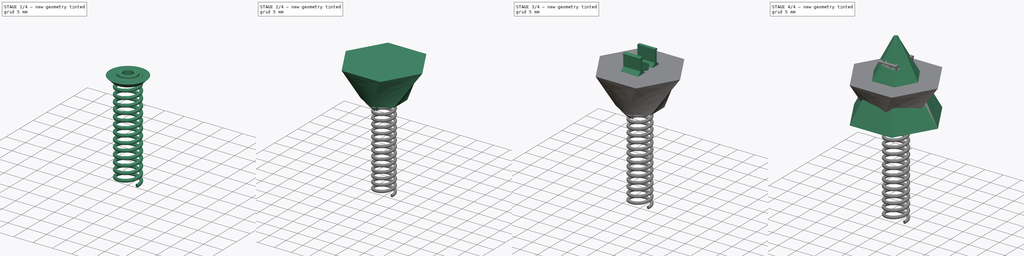
[diagram: build sequence overview — one tinted view per stage of 4, left to right]
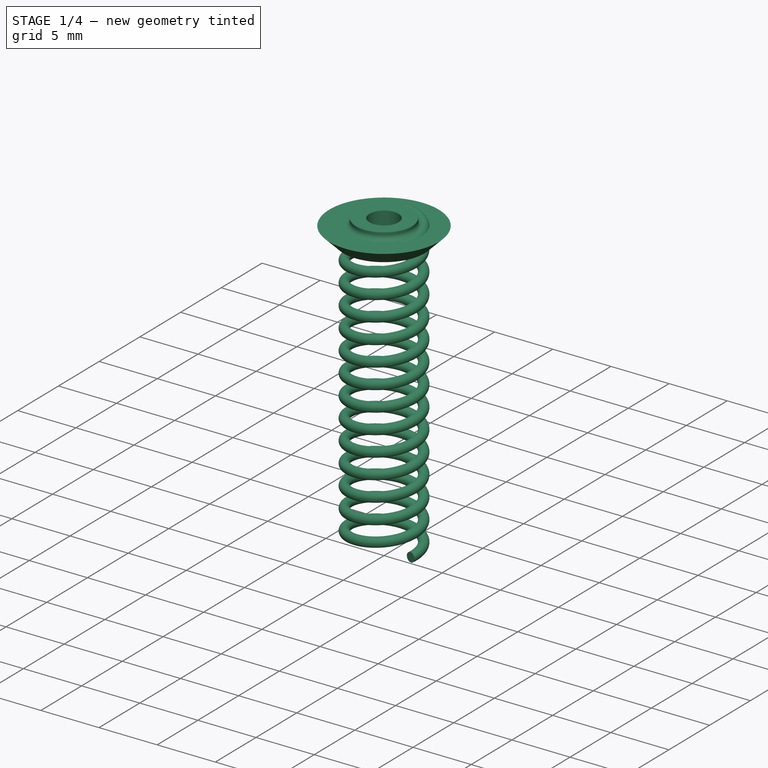
[diagram: stage 1 of 4 — iso view after this stage's code; geometry added in this stage tinted green]
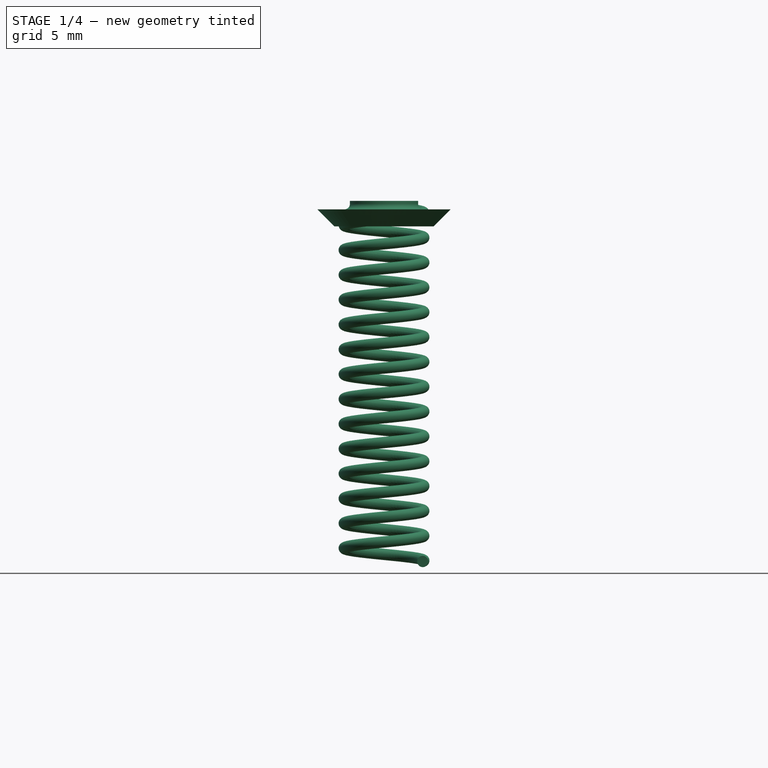
[diagram: stage 1 of 4 — front view after this stage's code; geometry added in this stage tinted green]
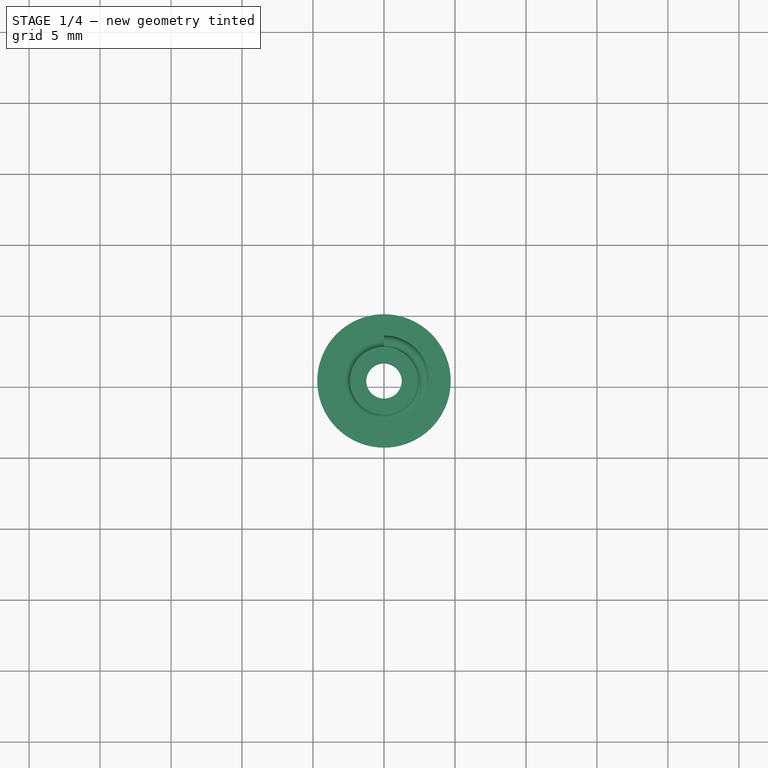
[diagram: stage 1 of 4 — top view after this stage's code; geometry added in this stage tinted green]
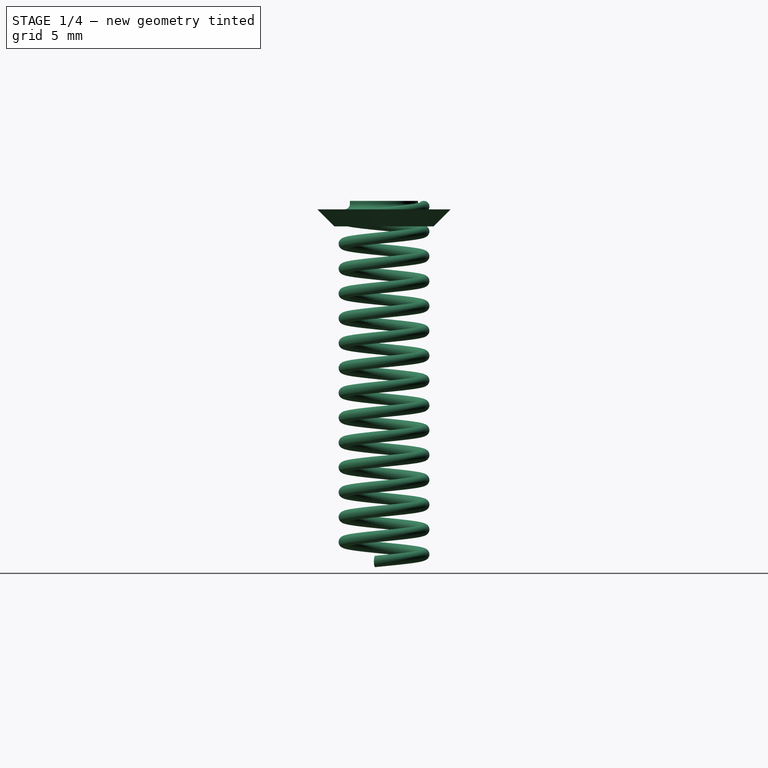
[diagram: stage 1 of 4 — right view after this stage's code; geometry added in this stage tinted green]
FCSTD DOCUMENT  (FreeCAD 0.19R24276 (Git))
Label: Phoebe_Tail
License: All rights reserved
LicenseURL: http://en.wikipedia.org/wiki/All_rights_reserved
objects: Sketcher::SketchObject×13, PartDesign::Plane×4, PartDesign::Pocket×4, PartDesign::Body×4, PartDesign::AdditiveLoft×2, Spreadsheet::Sheet×1, PartDesign::Revolution×1, PartDesign::Pad×1, PartDesign::AdditiveHelix×1, App::Part×1
note: 39 computed .brp shape members not serialized (recipe doc carries the construction recipe); baked Part::Feature solids carry a one-line shape summary decoded from their .brp

FEATURE [Sketcher::SketchObject] Sketch006  label="Sketch_TailBase002"
  FullyConstrained = true
  MapMode = 5
  Placement = pos=(0,0,0) rot=(1,0,0;1.5708rad)
  Support = -> [XZ_Plane002]
  expr: Constraints[24] = Spreadsheet.spring_wire_diam / 4
  expr: Constraints[23] = <<params>>.base_plate_outer_diam / 2
  expr: Constraints[11] = <<params>>.m2_hole_clear_diam / 2
  expr: Constraints[12] = <<params>>.base_plate_inner_diam / 2
  expr: Constraints[13] = Spreadsheet.spring_wire_diam
  expr: Constraints[14] = <<params>>.base_plate_thick
  sketch-geometry (9):
    g0: LineSegment StartX=1.25 StartY=0 StartZ=0 EndX=2.4 EndY=0 EndZ=0
    g1: LineSegment StartX=1.25 StartY=0 StartZ=0 EndX=1.25 EndY=-1.8 EndZ=0
    g2: LineSegment StartX=1.25 StartY=-1.8 StartZ=0 EndX=3.5 EndY=-1.8 EndZ=0
    g3: LineSegment StartX=4.7 StartY=-0.6 StartZ=0 EndX=2.8 EndY=-0.6 EndZ=0
    g4: LineSegment StartX=2.4 StartY=0 StartZ=0 EndX=2.4 EndY=-0.2 EndZ=0
    g5: ArcOfCircle CenterX=2.8 CenterY=-0.2 CenterZ=0 NormalX=0 NormalY=0 NormalZ=1 AngleXU=0 Radius=0.4 StartAngle=3.14159 EndAngle=4.71239
    g6: LineSegment StartX=3.5 StartY=-1.8 StartZ=0 EndX=4.7 EndY=-0.6 EndZ=0
    g7: LineSegment StartX=4.7 StartY=-0.6 StartZ=0 EndX=4.7 EndY=-1.8 EndZ=0
    g8: LineSegment StartX=3.5 StartY=-1.8 StartZ=0 EndX=4.7 EndY=-1.8 EndZ=0
  constraints (25):
    c: PointOnObject(g0,g-1)
    c: PointOnObject(g0,g-1)
    c: Coincident(g1,g0)
    c: Vertical(g1)
    c: Coincident(g2,g1)
    c: Horizontal(g2)
    c: Horizontal(g3)
    c: Coincident(g4,g0)
    c: Vertical(g4)
    c: Tangent(g3,g5) = 1.5708
    c: Tangent(g4,g5) = -1.5708
    c: DistanceX(g-1,g0) = 1.25
    c: DistanceX(g-1,g0) = 2.4
    c: Diameter(g5) = 0.8
    c: DistanceY(g1,g3) = 1.2
    c: Coincident(g6,g2)
    c: Vertical(g7)
    c: Coincident(g8,g2)
    c: Coincident(g8,g7)
    c: Horizontal(g8)
    c: Angle(g8,g6) = 0.785398
    c: Coincident(g6,g3)
    c: Coincident(g7,g3)
    c: DistanceX(g-1,g3) = 4.7
    c: DistanceY(g4,g0) = 0.2
FEATURE [PartDesign::Revolution] Revolution
  Angle = 360
  Axis = (0,-2e-16,1)
  Base = (0,0,0)
  Placement = pos=(0,0,0) rot=(1,0,0;1.5708rad)
  Profile = -> Sketch006
  ReferenceAxis = -> Sketch006 [V_Axis]
  Reversed = true
FEATURE [PartDesign::Body] Body001  label="Tail_AttachPlate"
  Group = -> [Sketch006,Revolution,Sketch021,Pocket006]
  Origin = -> Origin002
  Tip = -> Pocket006
FEATURE [Sketcher::SketchObject] Sketch022
  FullyConstrained = true
  MapMode = 5
  Placement = pos=(0,0,0) rot=(0.57735,0.57735,0.57735;2.0944rad)
  Support = -> [YZ_Plane008]
  expr: Constraints[2] = <<params>>.base_plate_inner_diam / 2 + <<params>>.spring_wire_diam / 2
  expr: Constraints[1] = Spreadsheet.spring_wire_diam / 2
  expr: Constraints[0] = Spreadsheet.spring_wire_diam
  sketch-geometry (1):
    g0: Circle CenterX=2.8 CenterY=-0.4 CenterZ=0 NormalX=0 NormalY=0 NormalZ=1 AngleXU=0 Radius=0.4
  constraints (3):
    c: Diameter(g0) = 0.8
    c: DistanceY(g0,g-1) = 0.4
    c: DistanceX(g-1,g0) = 2.8
FEATURE [PartDesign::AdditiveHelix] AdditiveHelix
  Angle = 0
  Axis = (-2e-16,3e-16,1)
  Base = (0,0,0)
  HasBeenEdited = true
  Height = 25
  LeftHanded = false
  Mode = 0
  Outside = false
  Pitch = 1.75
  Placement = pos=(0,0,0) rot=(0.57735,0.57735,0.57735;2.0944rad)
  Profile = -> Sketch022
  ReferenceAxis = -> Sketch022 [V_Axis]
  Reversed = true
  Turns = 3
FEATURE [PartDesign::Body] Body006  label="Spring"
  Group = -> [Sketch022,AdditiveHelix]
  Origin = -> Origin008
  Tip = -> AdditiveHelix
FEATURE [App::Part] Part  label="Tail_Part"
  Group = -> [Body,Body001,Body002,Body006]
  Origin = -> Origin
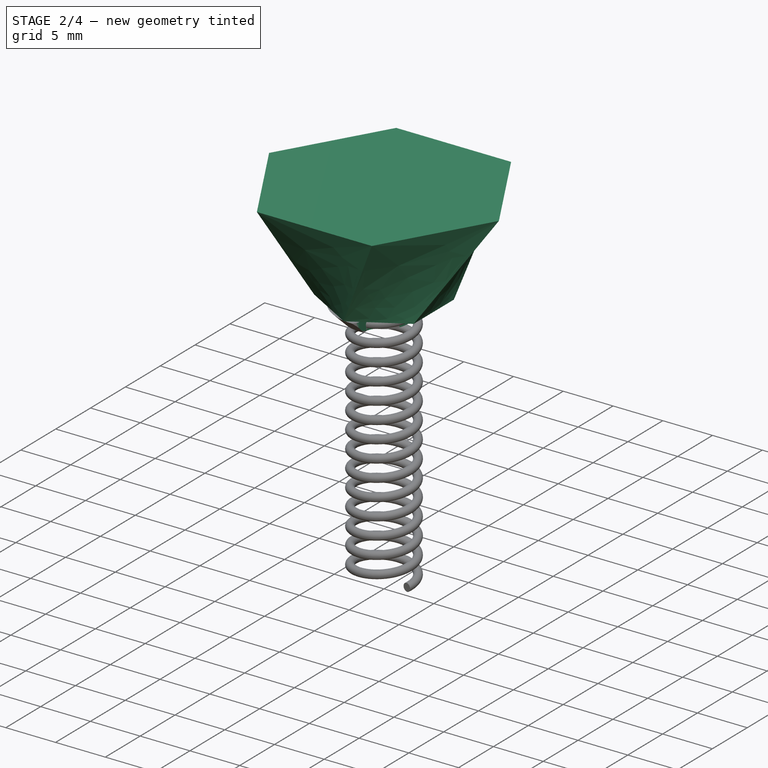
[diagram: stage 2 of 4 — iso view after this stage's code; geometry added in this stage tinted green]
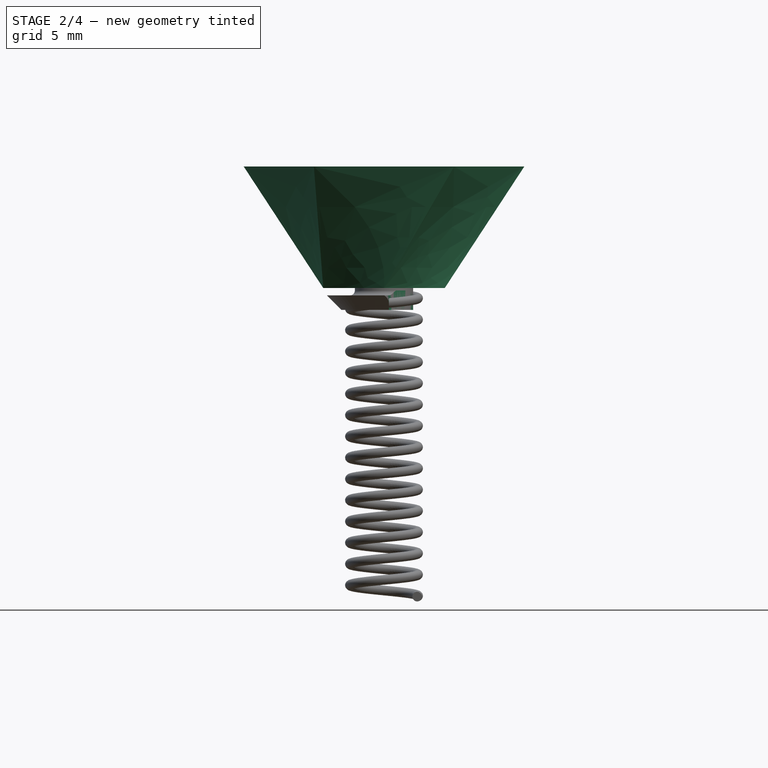
[diagram: stage 2 of 4 — front view after this stage's code; geometry added in this stage tinted green]
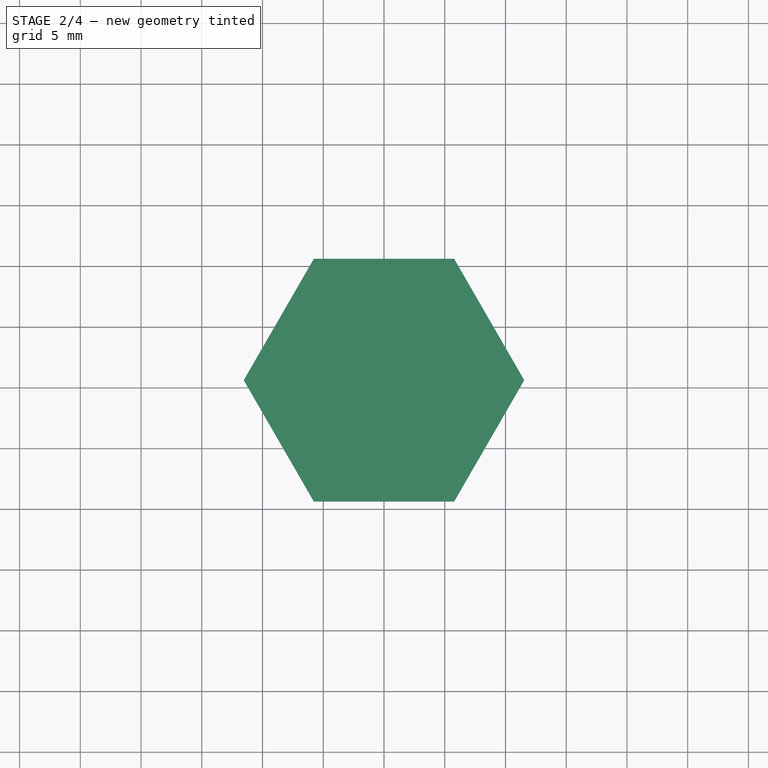
[diagram: stage 2 of 4 — top view after this stage's code; geometry added in this stage tinted green]
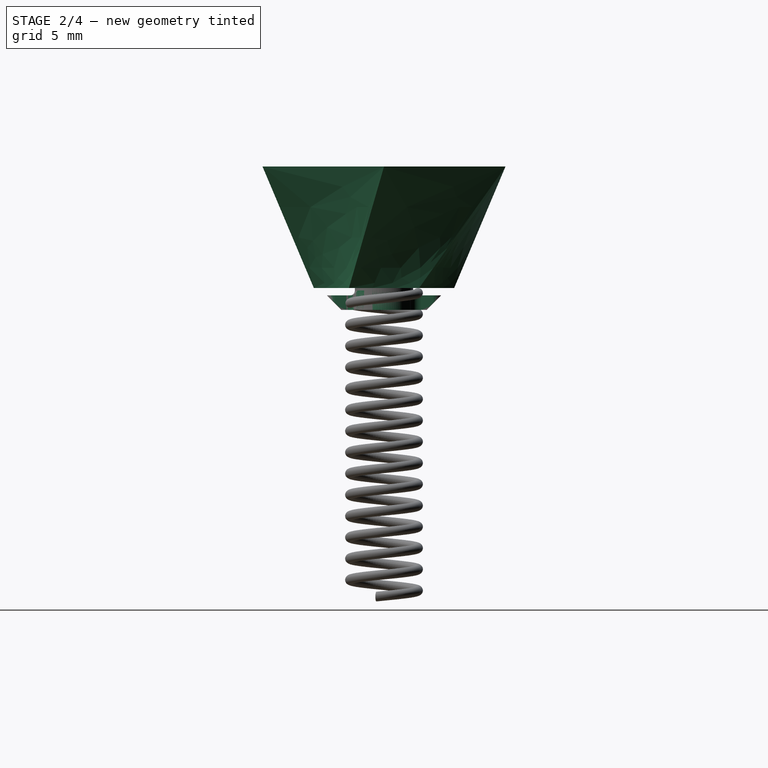
[diagram: stage 2 of 4 — right view after this stage's code; geometry added in this stage tinted green]
FEATURE [Spreadsheet::Sheet] Spreadsheet  label="params"
  cells = A1=M2 Bolt Clearances; C1=M2.5 Bolt Clearances; E1=Std Dims; G1=Clip; A2=Hole Clear Diam; B2(m2_hole_clear_diam)==2.5mm; C2=Hole Clear Diam; D2(m25_hole_clear_diam)==2.8mm; E2=Std. Chamfer; F2(std_chamf)==1mm; G2=Clip Tol; H2(clip_tol)==0.15mm; A3=Head Clear Diam; B3(m2_head_clear_diam)==4mm; C3=Head Clear Diam; D3(m25_head_clear_diam)==5mm; E3=Std. Radius; F3(std_rad)==2mm; A4=Head Min Depth; B4(m2_head_min_depth)==1.3mm; C4=Head Min Depth; D4(m25_head_min_depth)==1.6mm; G4=Clip Wall Thick; H4(clip_wall_thick)==0.8mm; A5=Nut Clear Flat; B5(m2_nut_clear_flat)==4.2mm; C5=Nut Clear Flat; D5(m25_nut_clear_flat)==5.2mm; G5=Clip Ball Diam; H5(clip_ball_diam)==0.5mm; A6=Nut Min Depth; B6(m2_nut_min_depth)==1.75mm; C6=Nut Min Depth; D6(m25_nut_min_depth)==2mm; G6=Clip Slot Width; H6(clip_slot_width)==clip_inner_diam / 2; G7=Clip Chamf; H7(clip_chamf)==1mm; A8=Tail Dims; C8=Base Plate Dims; A9=Tail Tot Height; B9(tail_tot_height)==tail_base_height + tail_top_height; C9=Base Plate Outer Diam; D9(base_plate_outer_diam)==9.4mm; G9=Clip Inner Diam; H9(clip_inner_diam)==5mm; A10=Tail Base Height; B10(tail_base_height)==10mm; C10=Base Plate Inner Diam; D10(base_plate_inner_diam)==4.8mm; G10=Clip Outer Diam; H10(clip_outer_diam)==clip_inner_diam + 2 * clip_wall_thick; A11=Tail Top Height; B11(tail_top_height)==20mm; C11=Base Plate Thick; D11(base_plate_thick)==1.2mm; G11=Clip Height; H11(clip_height)==clip_ball_diam + clip_chamf + 3mm; A12=Tail Base Width; B12(tail_base_width)==10mm; C12=Base Plate Groove Tol; D12(base_plate_groove_tol)==0.3mm; A13=Tail Mid Width; B13(tail_mid_width)==20mm; G13=Clip Width; H13(clip_width)==5mm; A14=Tail Top Width; B14(tail_top_width)==1mm; A16=Spring Wire Diam; B16(spring_wire_diam)==0.8mm
FEATURE [Sketcher::SketchObject] Sketch  label="Sketch_TailBase"
  FullyConstrained = true
  MapMode = 5
  Support = -> [XY_Plane001]
  expr: Constraints[19] = <<params>>.tail_base_width
  sketch-geometry (7):
    g0: LineSegment StartX=0 StartY=5.7735 StartZ=0 EndX=-5 EndY=2.88675 EndZ=0
    g1: LineSegment StartX=-5 StartY=2.88675 StartZ=0 EndX=-5 EndY=-2.88675 EndZ=0
    g2: LineSegment StartX=-5 StartY=-2.88675 StartZ=0 EndX=-9e-16 EndY=-5.7735 EndZ=0
    g3: LineSegment StartX=-9e-16 StartY=-5.7735 StartZ=0 EndX=5 EndY=-2.88675 EndZ=0
    g4: LineSegment StartX=5 StartY=-2.88675 StartZ=0 EndX=5 EndY=2.88675 EndZ=0
    g5: LineSegment StartX=5 StartY=2.88675 StartZ=0 EndX=0 EndY=5.7735 EndZ=0
    g6: Circle CenterX=0 CenterY=0 CenterZ=0 NormalX=0 NormalY=0 NormalZ=1 AngleXU=0 Radius=5.7735
  constraints (16):
    c: Coincident(g0,g1)
    c: Coincident(g1,g2)
    c: Coincident(g2,g3)
    c: Coincident(g3,g4)
    c: Coincident(g4,g5)
    c: Coincident(g5,g0)
    c: Equal(g0, g1-g5) x5
    c: PointOnObject(g0,g6)
    c: PointOnObject(g1,g6)
    c: PointOnObject(g2,g6)
    c: PointOnObject(g3,g6)
    c: PointOnObject(g4,g6)
    c: PointOnObject(g5,g6)
    c: Coincident(g6,g-1)
    c: PointOnObject(g5,g-2)
    c: DistanceX(g0,g4) = 10
FEATURE [PartDesign::Plane] DatumPlane  label="Tail_MidPoint"
  AttachmentOffset = pos=(0,0,10) rot=(0,0,1;0rad)
  Length = 60
  MapMode = 5
  Placement = pos=(0,0,10) rot=(0,0,1;0rad)
  ResizeMode = 0
  Support = -> [XY_Plane001]
  Width = 60
  expr: .AttachmentOffset.Base.z = <<params>>.tail_base_height
FEATURE [Sketcher::SketchObject] Sketch001  label="Sketch_TailMidWidth"
  FullyConstrained = true
  MapMode = 5
  Placement = pos=(0,0,10) rot=(0,0,1;0rad)
  Support = -> [DatumPlane]
  expr: Constraints[19] = <<params>>.tail_mid_width
  sketch-geometry (7):
    g0: LineSegment StartX=-5.7735 StartY=10 StartZ=0 EndX=-11.547 EndY=3.91e-14 EndZ=0
    g1: LineSegment StartX=-11.547 StartY=3.92e-14 StartZ=0 EndX=-5.7735 EndY=-10 EndZ=0
    g2: LineSegment StartX=-5.7735 StartY=-10 StartZ=0 EndX=5.7735 EndY=-10 EndZ=0
    g3: LineSegment StartX=5.7735 StartY=-10 StartZ=0 EndX=11.547 EndY=-2.31e-14 EndZ=0
    g4: LineSegment StartX=11.547 StartY=-2.31e-14 StartZ=0 EndX=5.7735 EndY=10 EndZ=0
    g5: LineSegment StartX=5.7735 StartY=10 StartZ=0 EndX=-5.7735 EndY=10 EndZ=0
    g6: Circle CenterX=0 CenterY=0 CenterZ=0 NormalX=0 NormalY=0 NormalZ=1 AngleXU=0 Radius=11.547
  constraints (16):
    c: Coincident(g0,g1)
    c: Coincident(g1,g2)
    c: Coincident(g2,g3)
    c: Coincident(g3,g4)
    c: Coincident(g4,g5)
    c: Coincident(g5,g0)
    c: Equal(g0, g1-g5) x5
    c: PointOnObject(g0,g6)
    c: PointOnObject(g1,g6)
    c: PointOnObject(g2,g6)
    c: PointOnObject(g3,g6)
    c: PointOnObject(g4,g6)
    c: PointOnObject(g5,g6)
    c: Coincident(g6,g-1)
    c: Horizontal(g5)
    c: DistanceY(g2,g4) = 20
FEATURE [PartDesign::AdditiveLoft] AdditiveLoft  label="AdditiveLoft_TailBase"
  Closed = false
  Profile = -> Sketch
  Ruled = false
  Sections = -> [Sketch001]
FEATURE [PartDesign::Body] Body  label="Tail_Base"
  Group = -> [Sketch,DatumPlane,Sketch001,AdditiveLoft,Sketch004,Pocket,Sketch015,DatumPlane002,DatumPlane003,Sketch017,Sketch020,Pad,Pocket005]
  Origin = -> Origin001
  Tip = -> Pocket005
FEATURE [Sketcher::SketchObject] Sketch021
  FullyConstrained = true
  MapMode = 5
  Support = -> [XY_Plane002]
  expr: Constraints[21] = Spreadsheet.spring_wire_diam / 2
  expr: Constraints[19] = <<params>>.base_plate_outer_diam
  expr: Constraints[18] = Spreadsheet.spring_wire_diam
  expr: Constraints[9] = <<params>>.std_rad / 2
  expr: Constraints[8] = <<params>>.base_plate_inner_diam
  sketch-geometry (8):
    g0: ArcOfCircle CenterX=0 CenterY=0 CenterZ=0 NormalX=0 NormalY=0 NormalZ=1 AngleXU=0 Radius=2.4 StartAngle=5.13678 EndAngle=7.42959
    g1: LineSegment StartX=0.4 StartY=3.09839 StartZ=0 EndX=0.4 EndY=4.00718 EndZ=0
    g2: LineSegment StartX=0.4 StartY=-3.09839 StartZ=0 EndX=0.4 EndY=-4.00718 EndZ=0
    g3: ArcOfCircle CenterX=1.4 CenterY=3.09839 CenterZ=0 NormalX=0 NormalY=0 NormalZ=1 AngleXU=0 Radius=1 StartAngle=3.14159 EndAngle=4.288
    g4: ArcOfCircle CenterX=1.4 CenterY=-3.09839 CenterZ=0 NormalX=0 NormalY=0 NormalZ=1 AngleXU=0 Radius=1 StartAngle=1.99519 EndAngle=3.14159
    g5: ArcOfCircle CenterX=-0.4 CenterY=4.00718 CenterZ=0 NormalX=0 NormalY=0 NormalZ=1 AngleXU=0 Radius=0.8 StartAngle=2e-16 EndAngle=1.0472
    g6: ArcOfCircle CenterX=-0.4 CenterY=-4.00718 CenterZ=0 NormalX=0 NormalY=0 NormalZ=1 AngleXU=0 Radius=0.8 StartAngle=5.23599 EndAngle=6.28319
    g7: ArcOfCircle CenterX=0 CenterY=0 CenterZ=0 NormalX=0 NormalY=0 NormalZ=1 AngleXU=0 Radius=4.7 StartAngle=4.71239 EndAngle=7.85398
  constraints (22):
    c: Coincident(g0,g-1)
    c: Tangent(g0,g3) = 1.5708
    c: Tangent(g1,g3) = 1.5708
    c: Tangent(g0,g4) = 1.5708
    c: Tangent(g2,g4) = -1.5708
    c: Equal(g3,g4)
    c: Vertical(g1)
    c: Vertical(g2)
    c: Diameter(g0) = 4.8
    c: Radius(g3) = 1
    c: Tangent(g1,g5) = -1.5708
    c: Tangent(g2,g6) = 1.5708
    c: Coincident(g7,g0)
    c: Coincident(g7,g5)
    c: Coincident(g7,g6)
    c: Equal(g5,g6)
    c: PointOnObject(g6,g-2)
    c: PointOnObject(g5,g-2)
    c: Radius(g5) = 0.8
    c: Diameter(g7) = 9.4
    c: Equal(g1,g2)
    c: DistanceX(g5,g1) = 0.4
FEATURE [PartDesign::Pocket] Pocket006
  BaseFeature = -> Revolution
  Length = 5
  Length2 = 100
  Placement = pos=(0,0,0) rot=(1,0,0;1.5708rad)
  Profile = -> Sketch021
  Type = 1
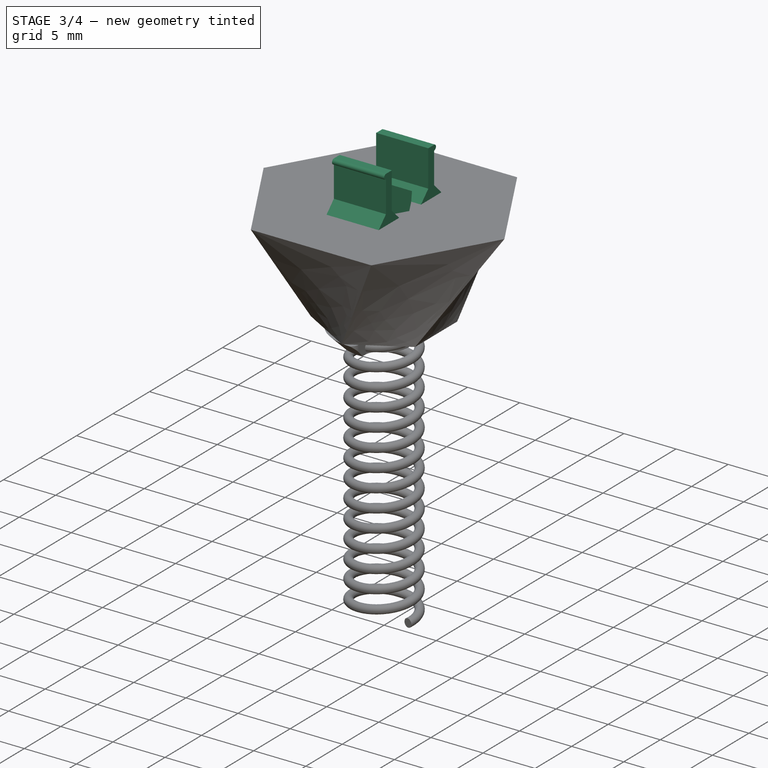
[diagram: stage 3 of 4 — iso view after this stage's code; geometry added in this stage tinted green]
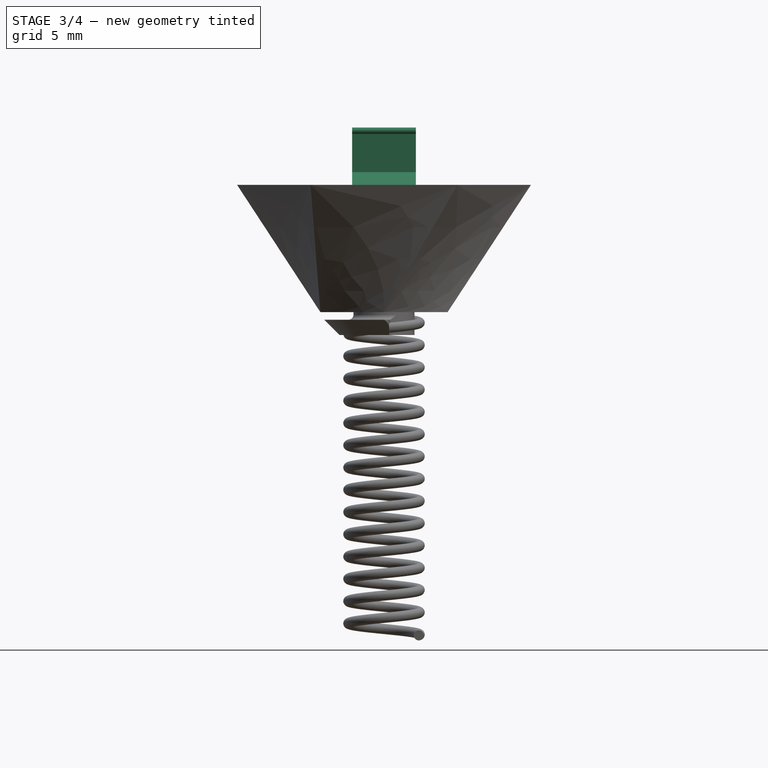
[diagram: stage 3 of 4 — front view after this stage's code; geometry added in this stage tinted green]
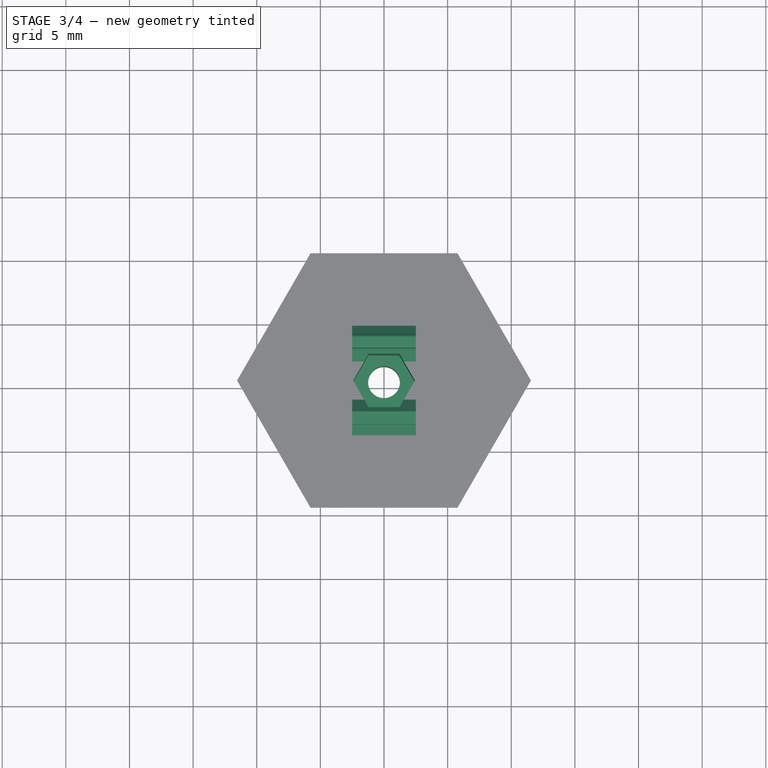
[diagram: stage 3 of 4 — top view after this stage's code; geometry added in this stage tinted green]
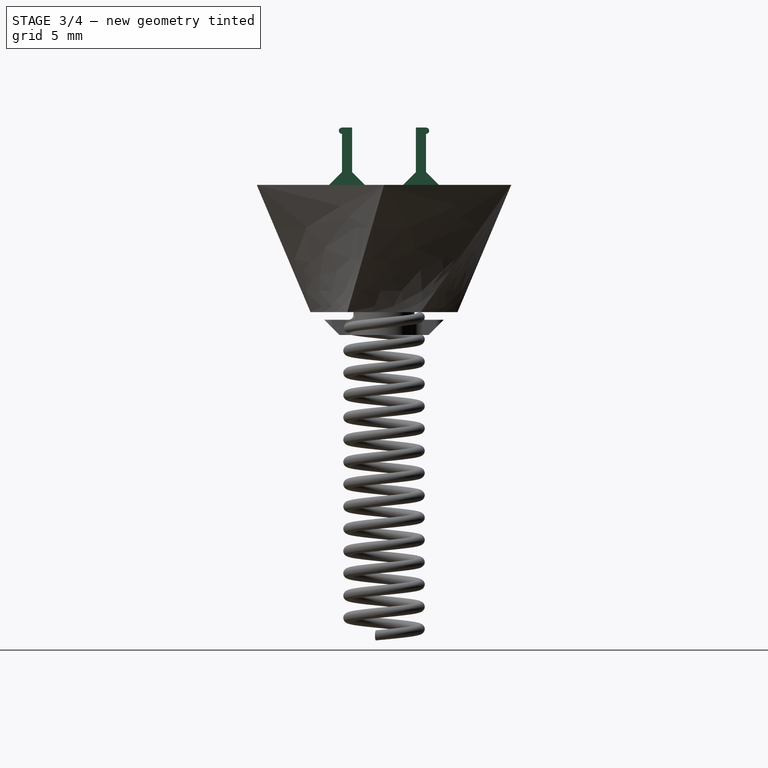
[diagram: stage 3 of 4 — right view after this stage's code; geometry added in this stage tinted green]
FEATURE [Sketcher::SketchObject] Sketch004
  FullyConstrained = true
  MapMode = 5
  Support = -> [XY_Plane001]
  expr: Constraints[1] = <<params>>.m2_hole_clear_diam
  sketch-geometry (1):
    g0: Circle CenterX=0 CenterY=0 CenterZ=0 NormalX=0 NormalY=0 NormalZ=1 AngleXU=0 Radius=1.25
  constraints (2):
    c: Coincident(g0,g-1)
    c: Diameter(g0) = 2.5
FEATURE [PartDesign::Pocket] Pocket  label="Pocket_M2Hole"
  BaseFeature = -> AdditiveLoft
  Length = 5
  Length2 = 100
  Profile = -> Sketch004
  Reversed = true
  Type = 1
FEATURE [PartDesign::Body] Body002  label="Tali_Top"
  Group = -> [Sketch002,DatumPlane001,Sketch003,AdditiveLoft001,Sketch018,Sketch019,Pocket004]
  Origin = -> Origin003
  Placement = pos=(0,0,10) rot=(0,0,1;0rad)
  Tip = -> Pocket004
FEATURE [Sketcher::SketchObject] Sketch020  label="Sketch_ClipSquare"
  FullyConstrained = true
  MapMode = 5
  Placement = pos=(-2.2e-15,2.2e-15,10) rot=(0.57735,0.57735,0.57735;2.0944rad)
  Support = -> [DatumPlane002]
  expr: Constraints[16] = <<params>>.clip_wall_thick
  expr: Constraints[15] = <<params>>.clip_outer_diam / 2
  expr: Constraints[17] = <<params>>.clip_height
  expr: Constraints[14] = <<params>>.clip_chamf
  expr: Constraints[6] = <<params>>.clip_ball_diam
  expr: Constraints[32] = <<params>>.clip_outer_diam / 2
  sketch-geometry (18):
    g0: ArcOfCircle CenterX=-3.3 CenterY=4.25 CenterZ=0 NormalX=0 NormalY=0 NormalZ=1 AngleXU=0 Radius=0.25 StartAngle=1.5708 EndAngle=4.71239
    g1: LineSegment StartX=-3.3 StartY=4 StartZ=0 EndX=-3.3 EndY=1 EndZ=0
    g2: LineSegment StartX=-3.3 StartY=1 StartZ=0 EndX=-4.3 EndY=0 EndZ=0
    g3: LineSegment StartX=-3.3 StartY=4 StartZ=0 EndX=-3.3 EndY=4.5 EndZ=0
    g4: LineSegment StartX=-3.3 StartY=4.5 StartZ=0 EndX=-2.5 EndY=4.5 EndZ=0
    g5: LineSegment StartX=-4.3 StartY=0 StartZ=0 EndX=-1.5 EndY=0 EndZ=0
    g6: LineSegment StartX=4.3 StartY=0 StartZ=0 EndX=1.5 EndY=0 EndZ=0
    g7: LineSegment StartX=4.3 StartY=0 StartZ=0 EndX=3.3 EndY=1 EndZ=0
    g8: LineSegment StartX=3.3 StartY=1 StartZ=0 EndX=3.3 EndY=4 EndZ=0
    g9: ArcOfCircle CenterX=3.3 CenterY=4.25 CenterZ=0 NormalX=0 NormalY=0 NormalZ=1 AngleXU=0 Radius=0.25 StartAngle=4.71239 EndAngle=7.85398
    g10: LineSegment StartX=3.3 StartY=4.5 StartZ=0 EndX=3.3 EndY=4 EndZ=0
    g11: LineSegment StartX=3.3 StartY=4.5 StartZ=0 EndX=2.5 EndY=4.5 EndZ=0
    g12: LineSegment StartX=2.5 StartY=4.5 StartZ=0 EndX=2.5 EndY=1 EndZ=0
    g13: LineSegment StartX=2.5 StartY=1 StartZ=0 EndX=1.5 EndY=0 EndZ=0
    g14: LineSegment StartX=2.5 StartY=1 StartZ=0 EndX=3.3 EndY=1 EndZ=0
    g15: LineSegment StartX=-1.5 StartY=0 StartZ=0 EndX=-2.5 EndY=1 EndZ=0
    g16: LineSegment StartX=-2.5 StartY=4.5 StartZ=0 EndX=-2.5 EndY=1 EndZ=0
    g17: LineSegment StartX=-3.3 StartY=1 StartZ=0 EndX=-2.5 EndY=1 EndZ=0
  constraints (52):
    c: PointOnObject(g2,g-1)
    c: Coincident(g1,g0)
    c: Vertical(g1)
    c: Coincident(g2,g1)
    c: Coincident(g3,g0)
    c: Vertical(g3)
    c: Diameter(g0) = 0.5
    c: Coincident(g0,g3)
    c: PointOnObject(g0,g3)
    c: Coincident(g4,g0)
    c: Horizontal(g4)
    c: PointOnObject(g5,g-1)
    c: Coincident(g5,g2)
    c: Angle(g5,g2) = 0.785398
    c: DistanceY(g2,g1) = 1
    c: DistanceX(g0,g-1) = 3.3
    c: DistanceX(g0,g4) = 0.8
    c: DistanceY(g-1,g4) = 4.5
    c: PointOnObject(g6,g-1)
    c: PointOnObject(g6,g-1)
    c: Equal(g5,g6)
    c: Coincident(g7,g6)
    c: Coincident(g8,g7)
    c: Vertical(g8)
    c: Coincident(g9,g8)
    c: Coincident(g10,g9)
    c: Coincident(g10,g8)
    c: Vertical(g10)
    c: PointOnObject(g9,g10)
    c: Equal(g0,g9)
    c: Equal(g8,g1)
    c: Equal(g2,g7)
    c: DistanceX(g-1,g9) = 3.3
    c: Angle(g7,g6) = 0.785398
    c: Coincident(g11,g9)
    c: Horizontal(g11)
    c: Coincident(g12,g11)
    c: Vertical(g12)
    c: Coincident(g13,g12)
    c: Coincident(g13,g6)
    c: Coincident(g14,g12)
    c: Coincident(g14,g7)
    c: Horizontal(g14)
    c: Coincident(g15,g5)
    c: Coincident(g16,g4)
    c: Coincident(g16,g15)
    c: Vertical(g16)
    c: Coincident(g17,g1)
    c: Coincident(g17,g15)
    c: Horizontal(g17)
    c: Equal(g11,g4)
    c: Angle(g6,g13) = 0.785398
FEATURE [PartDesign::Pad] Pad  label="Pad_ClipSquare"
  BaseFeature = -> Pocket
  Direction = (1,1,1)
  Length = 5
  Length2 = 100
  Midplane = true
  Profile = -> Sketch020
  Type = 0
  expr: Length = <<params>>.clip_width
FEATURE [PartDesign::Pocket] Pocket005  label="Pocket_HexSunk"
  BaseFeature = -> Pad
  Length = 12
  Length2 = 100
  Profile = -> Sketch017
  Type = 0
  expr: Length = <<params>>.clip_height + <<params>>.tail_base_height * 0.75
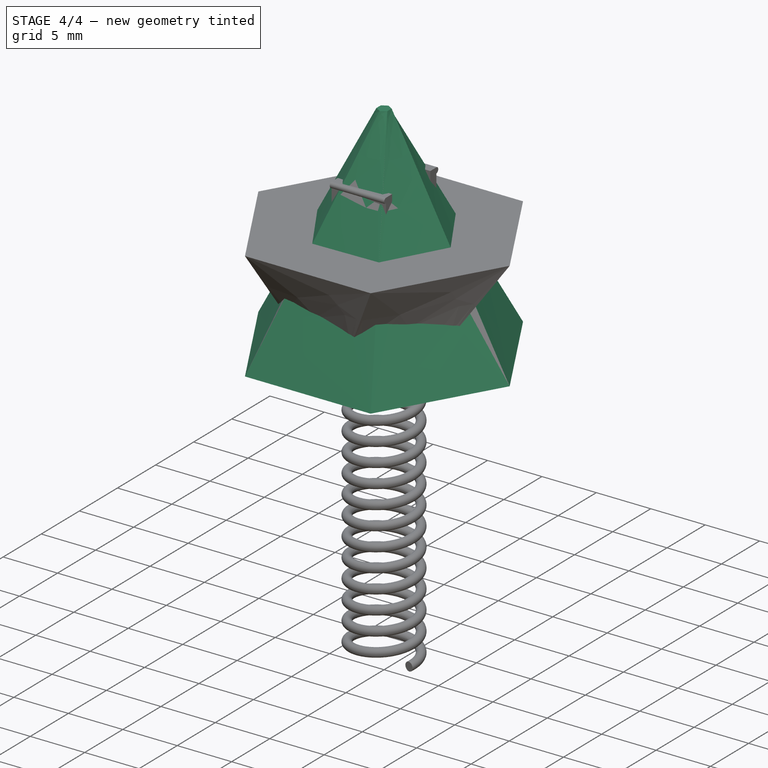
[diagram: stage 4 of 4 — iso view after this stage's code; geometry added in this stage tinted green]
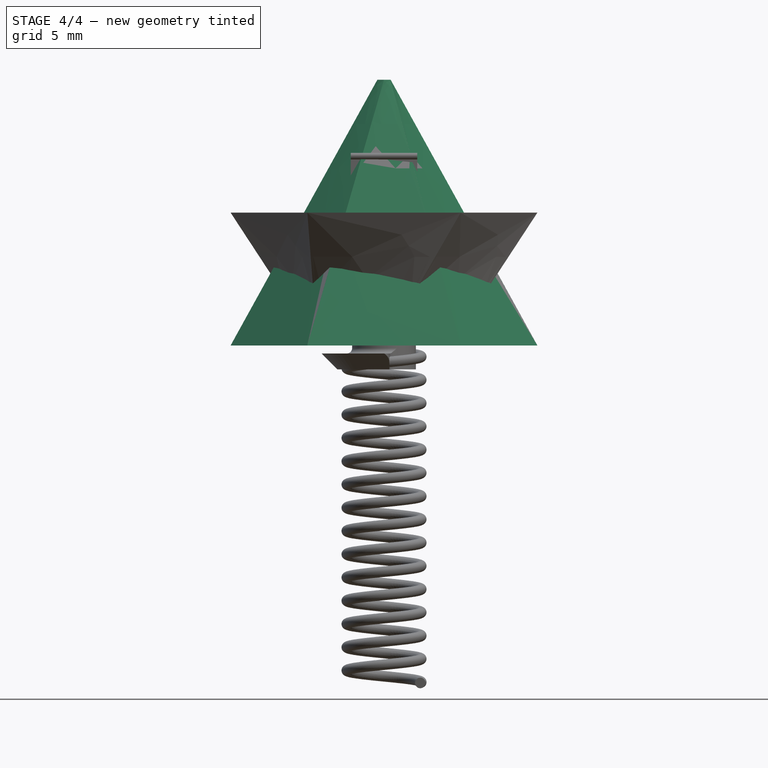
[diagram: stage 4 of 4 — front view after this stage's code; geometry added in this stage tinted green]
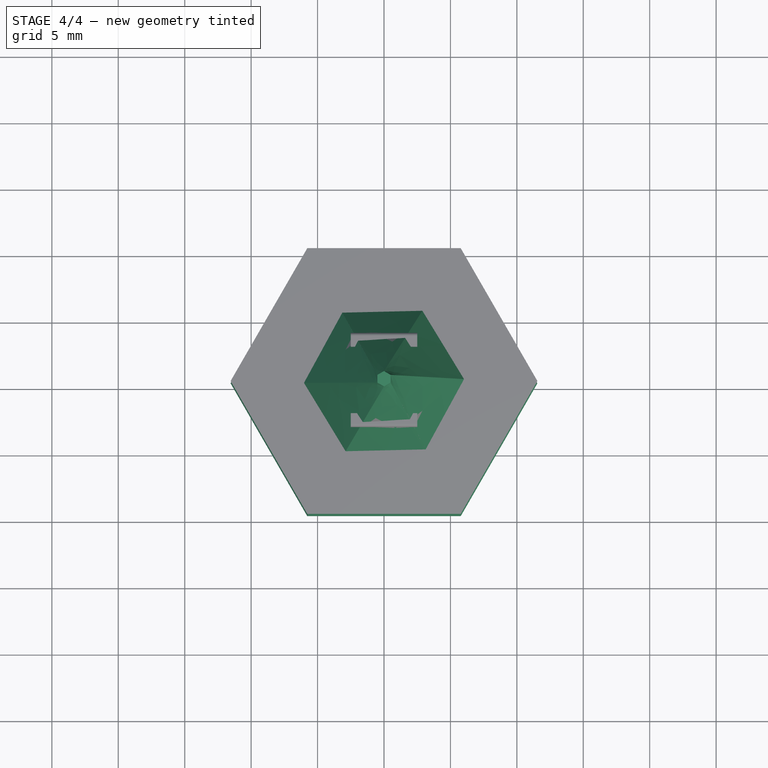
[diagram: stage 4 of 4 — top view after this stage's code; geometry added in this stage tinted green]
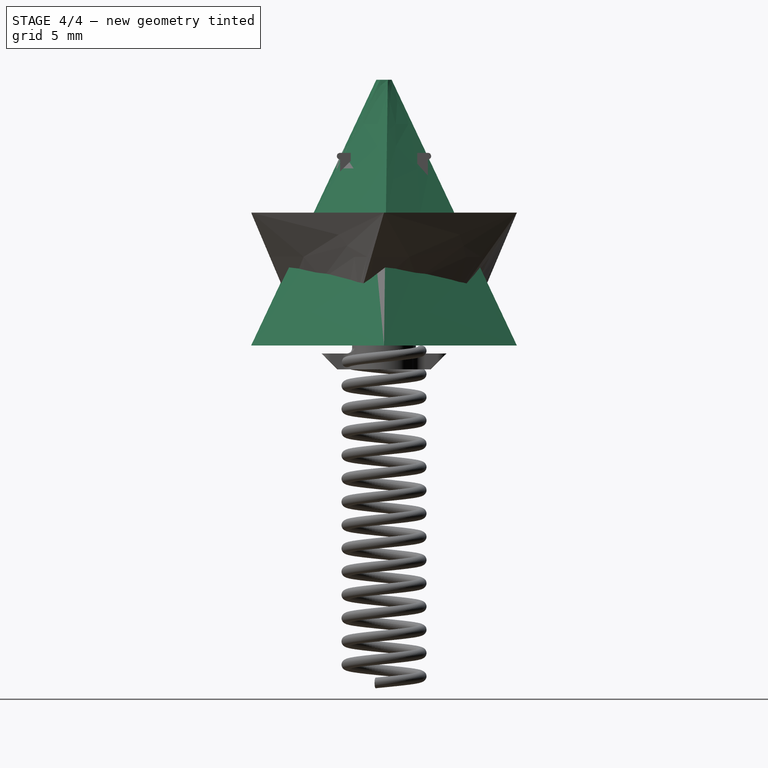
[diagram: stage 4 of 4 — right view after this stage's code; geometry added in this stage tinted green]
FEATURE [Sketcher::SketchObject] Sketch002  label="Sketch_TailMid"
  FullyConstrained = true
  MapMode = 5
  Support = -> [XY_Plane003]
  expr: Constraints[19] = <<params>>.tail_mid_width
  sketch-geometry (7):
    g0: LineSegment StartX=11.547 StartY=3.162e-13 StartZ=0 EndX=5.7735 EndY=10 EndZ=0
    g1: LineSegment StartX=5.7735 StartY=10 StartZ=0 EndX=-5.7735 EndY=10 EndZ=0
    g2: LineSegment StartX=-5.7735 StartY=10 StartZ=0 EndX=-11.547 EndY=1.883e-13 EndZ=0
    g3: LineSegment StartX=-11.547 StartY=1.883e-13 StartZ=0 EndX=-5.7735 EndY=-10 EndZ=0
    g4: LineSegment StartX=-5.7735 StartY=-10 StartZ=0 EndX=5.7735 EndY=-10 EndZ=0
    g5: LineSegment StartX=5.7735 StartY=-10 StartZ=0 EndX=11.547 EndY=3.162e-13 EndZ=0
    g6: Circle CenterX=0 CenterY=0 CenterZ=0 NormalX=0 NormalY=0 NormalZ=1 AngleXU=0 Radius=11.547
  constraints (16):
    c: Coincident(g0,g1)
    c: Coincident(g1,g2)
    c: Coincident(g2,g3)
    c: Coincident(g3,g4)
    c: Coincident(g4,g5)
    c: Coincident(g5,g0)
    c: Equal(g0, g1-g5) x5
    c: PointOnObject(g0,g6)
    c: PointOnObject(g1,g6)
    c: PointOnObject(g2,g6)
    c: PointOnObject(g3,g6)
    c: PointOnObject(g4,g6)
    c: PointOnObject(g5,g6)
    c: Coincident(g6,g-1)
    c: Horizontal(g1)
    c: DistanceY(g4,g0) = 20
FEATURE [PartDesign::Plane] DatumPlane001  label="Datum_TailTop"
  AttachmentOffset = pos=(0,0,20) rot=(0,0,1;0rad)
  Length = 60
  MapMode = 5
  Placement = pos=(0,0,20) rot=(0,0,1;0rad)
  ResizeMode = 0
  Support = -> [XY_Plane003]
  Width = 60
  expr: .AttachmentOffset.Base.z = <<params>>.tail_top_height
FEATURE [Sketcher::SketchObject] Sketch003  label="Sketch_TailTop"
  FullyConstrained = true
  MapMode = 5
  Placement = pos=(0,0,20) rot=(0,0,1;0rad)
  Support = -> [DatumPlane001]
  expr: Constraints[19] = <<params>>.tail_top_width
  sketch-geometry (7):
    g0: LineSegment StartX=0 StartY=0.57735 StartZ=0 EndX=-0.5 EndY=0.288675 EndZ=0
    g1: LineSegment StartX=-0.5 StartY=0.288675 StartZ=0 EndX=-0.5 EndY=-0.288675 EndZ=0
    g2: LineSegment StartX=-0.5 StartY=-0.288675 StartZ=0 EndX=1e-16 EndY=-0.57735 EndZ=0
    g3: LineSegment StartX=1e-16 StartY=-0.57735 StartZ=0 EndX=0.5 EndY=-0.288675 EndZ=0
    g4: LineSegment StartX=0.5 StartY=-0.288675 StartZ=0 EndX=0.5 EndY=0.288675 EndZ=0
    g5: LineSegment StartX=0.5 StartY=0.288675 StartZ=0 EndX=0 EndY=0.57735 EndZ=0
    g6: Circle CenterX=0 CenterY=0 CenterZ=0 NormalX=0 NormalY=0 NormalZ=1 AngleXU=0 Radius=0.57735
  constraints (16):
    c: Coincident(g0,g1)
    c: Coincident(g1,g2)
    c: Coincident(g2,g3)
    c: Coincident(g3,g4)
    c: Coincident(g4,g5)
    c: Coincident(g5,g0)
    c: Equal(g0, g1-g5) x5
    c: PointOnObject(g0,g6)
    c: PointOnObject(g1,g6)
    c: PointOnObject(g2,g6)
    c: PointOnObject(g3,g6)
    c: PointOnObject(g4,g6)
    c: PointOnObject(g5,g6)
    c: Coincident(g6,g-1)
    c: PointOnObject(g5,g-2)
    c: DistanceX(g0,g4) = 1
FEATURE [PartDesign::AdditiveLoft] AdditiveLoft001  label="AdditiveLoft_MainTail"
  Closed = false
  Profile = -> Sketch002
  Ruled = false
  Sections = -> [Sketch003]
FEATURE [PartDesign::Plane] DatumPlane002  label="Datum_TopTailBase"
  AttachmentOffset = pos=(0,10,0) rot=(0,0,1;0rad)
  Length = 60
  MapMode = 5
  Placement = pos=(-2.2e-15,2.2e-15,10) rot=(0.57735,0.57735,0.57735;2.0944rad)
  ResizeMode = 0
  Support = -> [YZ_Plane001]
  Width = 60
  expr: .AttachmentOffset.Base.y = <<params>>.tail_base_height
FEATURE [Sketcher::SketchObject] Sketch015  label="Sketch_ClipRevSolid"
  FullyConstrained = true
  MapMode = 5
  Placement = pos=(-2.2e-15,2.2e-15,10) rot=(0.57735,0.57735,0.57735;2.0944rad)
  Support = -> [DatumPlane002]
  expr: Constraints[6] = <<params>>.clip_ball_diam
  expr: Constraints[17] = <<params>>.clip_chamf
  expr: Constraints[18] = <<params>>.clip_outer_diam / 2
  expr: Constraints[19] = <<params>>.clip_wall_thick
  expr: Constraints[20] = <<params>>.clip_height
  sketch-geometry (7):
    g0: ArcOfCircle CenterX=-3.3 CenterY=4.25 CenterZ=0 NormalX=0 NormalY=0 NormalZ=1 AngleXU=0 Radius=0.25 StartAngle=1.5708 EndAngle=4.71239
    g1: LineSegment StartX=-3.3 StartY=4 StartZ=0 EndX=-3.3 EndY=1 EndZ=0
    g2: LineSegment StartX=-3.3 StartY=1 StartZ=0 EndX=-4.3 EndY=0 EndZ=0
    g3: LineSegment StartX=-3.3 StartY=4 StartZ=0 EndX=-3.3 EndY=4.5 EndZ=0
    g4: LineSegment StartX=-3.3 StartY=4.5 StartZ=0 EndX=-2.5 EndY=4.5 EndZ=0
    g5: LineSegment StartX=-2.5 StartY=4.5 StartZ=0 EndX=-2.5 EndY=0 EndZ=0
    g6: LineSegment StartX=-4.3 StartY=0 StartZ=0 EndX=-2.5 EndY=0 EndZ=0
  constraints (21):
    c: PointOnObject(g2,g-1)
    c: Coincident(g1,g0)
    c: Vertical(g1)
    c: Coincident(g2,g1)
    c: Coincident(g3,g0)
    c: Vertical(g3)
    c: Diameter(g0) = 0.5
    c: Coincident(g0,g3)
    c: PointOnObject(g0,g3)
    c: Coincident(g4,g0)
    c: Horizontal(g4)
    c: Coincident(g5,g4)
    c: PointOnObject(g5,g-1)
    c: Vertical(g5)
    c: Coincident(g6,g2)
    c: Coincident(g6,g5)
    c: Angle(g6,g2) = 0.785398
    c: DistanceY(g2,g1) = 1
    c: DistanceX(g0,g-1) = 3.3
    c: DistanceX(g0,g4) = 0.8
    c: DistanceY(g-1,g4) = 4.5
FEATURE [PartDesign::Plane] DatumPlane003  label="Datum_TopOfBase"
  AttachmentOffset = pos=(0,0,14.5) rot=(0,0,1;0rad)
  Length = 60
  MapMode = 5
  Placement = pos=(0,0,14.5) rot=(0,0,1;0rad)
  ResizeMode = 0
  Support = -> [XY_Plane001]
  Width = 60
  expr: .AttachmentOffset.Base.z = <<params>>.tail_base_height + <<params>>.clip_height
FEATURE [Sketcher::SketchObject] Sketch017  label="Sketch_HexInset"
  FullyConstrained = true
  MapMode = 5
  Placement = pos=(0,0,14.5) rot=(0,0,1;0rad)
  Support = -> [DatumPlane003]
  expr: Constraints[21] = <<params>>.m2_nut_clear_flat
  sketch-geometry (8):
    g0: LineSegment StartX=1.21244 StartY=2.1 StartZ=0 EndX=-1.21244 EndY=2.1 EndZ=0
    g1: LineSegment StartX=-1.21244 StartY=2.1 StartZ=0 EndX=-2.42487 EndY=-5.6e-14 EndZ=0
    g2: LineSegment StartX=-2.42487 StartY=-5.6e-14 StartZ=0 EndX=-1.21244 EndY=-2.1 EndZ=0
    g3: LineSegment StartX=-1.21244 StartY=-2.1 StartZ=0 EndX=1.21244 EndY=-2.1 EndZ=0
    g4: LineSegment StartX=1.21244 StartY=-2.1 StartZ=0 EndX=2.42487 EndY=0 EndZ=0
    g5: LineSegment StartX=2.42487 StartY=0 StartZ=0 EndX=1.21244 EndY=2.1 EndZ=0
    g6: Circle CenterX=0 CenterY=0 CenterZ=0 NormalX=0 NormalY=0 NormalZ=1 AngleXU=0 Radius=2.42487
    g7: LineSegment StartX=1.21244 StartY=2.1 StartZ=0 EndX=1.21244 EndY=-2.1 EndZ=0
  constraints (18):
    c: Coincident(g0,g1)
    c: Coincident(g1,g2)
    c: Coincident(g2,g3)
    c: Coincident(g3,g4)
    c: Coincident(g4,g5)
    c: Coincident(g5,g0)
    c: Equal(g0, g1-g5) x5
    c: PointOnObject(g0,g6)
    c: PointOnObject(g1,g6)
    c: PointOnObject(g2,g6)
    c: PointOnObject(g3,g6)
    c: PointOnObject(g4,g6)
    c: PointOnObject(g5,g6)
    c: Coincident(g6,g-1)
    c: PointOnObject(g4,g-1)
    c: Coincident(g7,g0)
    c: Coincident(g7,g3)
    c: Distance(g7) = 4.2
FEATURE [Sketcher::SketchObject] Sketch018  label="Sketch_ClipRevCut"
  FullyConstrained = true
  MapMode = 5
  Placement = pos=(0,0,0) rot=(0.57735,0.57735,0.57735;2.0944rad)
  Support = -> [YZ_Plane003]
  expr: Constraints[35] = <<params>>.clip_chamf + <<params>>.clip_tol / 2
  expr: Constraints[27] = <<params>>.clip_tol * 2
  expr: Constraints[14] = (<<params>>.clip_outer_diam + <<params>>.clip_tol) / 2
  expr: Constraints[16] = <<params>>.clip_height + <<params>>.clip_tol / 2
  expr: Constraints[15] = <<params>>.clip_wall_thick
  expr: Constraints[6] = <<params>>.clip_ball_diam + <<params>>.clip_tol
  sketch-geometry (13):
    g0: ArcOfCircle CenterX=-3.375 CenterY=4.25 CenterZ=0 NormalX=0 NormalY=0 NormalZ=1 AngleXU=0 Radius=0.325 StartAngle=1.5708 EndAngle=4.71239
    g1: LineSegment StartX=-3.375 StartY=3.925 StartZ=0 EndX=-3.375 EndY=1.075 EndZ=0
    g2: LineSegment StartX=-3.375 StartY=1.075 StartZ=0 EndX=-4.45 EndY=0 EndZ=0
    g3: LineSegment StartX=-3.375 StartY=3.925 StartZ=0 EndX=-3.375 EndY=4.575 EndZ=0
    g4: LineSegment StartX=-2.575 StartY=4.575 StartZ=0 EndX=-2.575 EndY=0 EndZ=0
    g5: LineSegment StartX=-4.45 StartY=0 StartZ=0 EndX=-2.575 EndY=0 EndZ=0
    g6: LineSegment StartX=-3.375 StartY=4.575 StartZ=0 EndX=-2.575 EndY=4.575 EndZ=0
    g7: LineSegment StartX=-3.375 StartY=4.575 StartZ=0 EndX=-3.375 EndY=4.875 EndZ=0
    g8: LineSegment StartX=-2.575 StartY=4.575 StartZ=0 EndX=-2.575 EndY=4.875 EndZ=0
    g9: LineSegment StartX=-3.375 StartY=4.875 StartZ=0 EndX=-2.575 EndY=4.875 EndZ=0
    g10: LineSegment StartX=-2.575 StartY=0 StartZ=0 EndX=0 EndY=0 EndZ=0
    g11: LineSegment StartX=0 StartY=0 StartZ=0 EndX=0 EndY=4.875 EndZ=0
    g12: LineSegment StartX=-2.575 StartY=4.875 StartZ=0 EndX=0 EndY=4.875 EndZ=0
  constraints (36):
    c: PointOnObject(g2,g-1)
    c: Coincident(g1,g0)
    c: Vertical(g1)
    c: Coincident(g2,g1)
    c: Coincident(g3,g0)
    c: Vertical(g3)
    c: Diameter(g0) = 0.65
    c: Coincident(g0,g3)
    c: PointOnObject(g0,g3)
    c: PointOnObject(g4,g-1)
    c: Vertical(g4)
    c: Coincident(g5,g2)
    c: Coincident(g5,g4)
    c: Angle(g5,g2) = 0.785398
    c: DistanceX(g0,g-1) = 3.375
    c: DistanceX(g0,g4) = 0.8
    c: DistanceY(g-1,g4) = 4.575
    c: Coincident(g6,g0)
    c: Coincident(g6,g4)
    c: Horizontal(g6)
    c: Coincident(g7,g0)
    c: Vertical(g7)
    c: Coincident(g8,g4)
    c: Vertical(g8)
    c: Coincident(g9,g7)
    c: Coincident(g9,g8)
    c: Horizontal(g9)
    c: Distance(g8) = 0.3
    c: Coincident(g10,g5)
    c: Coincident(g10,g-1)
    c: Coincident(g11,g10)
    c: PointOnObject(g11,g-2)
    c: Coincident(g12,g9)
    c: Coincident(g12,g11)
    c: Horizontal(g12)
    c: DistanceX(g2,g1) = 1.075
FEATURE [Sketcher::SketchObject] Sketch019  label="Sketch_ClipSqCut"
  FullyConstrained = true
  MapMode = 5
  Placement = pos=(0,0,0) rot=(0.57735,0.57735,0.57735;2.0944rad)
  Support = -> [YZ_Plane003]
  expr: Constraints[6] = <<params>>.clip_ball_diam + <<params>>.clip_tol
  expr: Constraints[16] = <<params>>.clip_height + <<params>>.clip_tol / 2
  expr: Constraints[14] = (<<params>>.clip_outer_diam + <<params>>.clip_tol) / 2
  expr: Constraints[27] = <<params>>.clip_tol * 2
  expr: Constraints[15] = <<params>>.clip_wall_thick
  expr: Constraints[33] = <<params>>.clip_chamf + <<params>>.clip_tol / 2
  sketch-geometry (21):
    g0: ArcOfCircle CenterX=-3.375 CenterY=4.25 CenterZ=0 NormalX=0 NormalY=0 NormalZ=1 AngleXU=0 Radius=0.325 StartAngle=1.5708 EndAngle=4.71239
    g1: LineSegment StartX=-3.375 StartY=3.925 StartZ=0 EndX=-3.375 EndY=1.075 EndZ=0
    g2: LineSegment StartX=-3.375 StartY=1.075 StartZ=0 EndX=-4.45 EndY=0 EndZ=0
    g3: LineSegment StartX=-3.375 StartY=3.925 StartZ=0 EndX=-3.375 EndY=4.575 EndZ=0
    g4: LineSegment StartX=-2.575 StartY=4.575 StartZ=0 EndX=-2.575 EndY=0 EndZ=0
    g5: LineSegment StartX=-4.45 StartY=0 StartZ=0 EndX=-2.575 EndY=0 EndZ=0
    g6: LineSegment StartX=-3.375 StartY=4.575 StartZ=0 EndX=-2.575 EndY=4.575 EndZ=0
    g7: LineSegment StartX=-3.375 StartY=4.575 StartZ=0 EndX=-3.375 EndY=4.875 EndZ=0
    g8: LineSegment StartX=-2.575 StartY=4.575 StartZ=0 EndX=-2.575 EndY=4.875 EndZ=0
    g9: LineSegment StartX=-3.375 StartY=4.875 StartZ=0 EndX=-2.575 EndY=4.875 EndZ=0
    g10: LineSegment StartX=-2.575 StartY=0 StartZ=0 EndX=0 EndY=0 EndZ=0
    g11: LineSegment StartX=-2.575 StartY=4.875 StartZ=0 EndX=0 EndY=4.875 EndZ=0
    g12: LineSegment StartX=3.375 StartY=1.075 StartZ=0 EndX=3.375 EndY=3.925 EndZ=0
    g13: LineSegment StartX=3.375 StartY=4.875 StartZ=0 EndX=3.375 EndY=4.575 EndZ=0
    g14: ArcOfCircle CenterX=3.375 CenterY=4.25 CenterZ=0 NormalX=0 NormalY=0 NormalZ=1 AngleXU=0 Radius=0.325 StartAngle=4.71239 EndAngle=7.85398
    g15: LineSegment StartX=3.375 StartY=4.575 StartZ=0 EndX=3.375 EndY=3.925 EndZ=0
    g16: LineSegment StartX=0 StartY=0 StartZ=0 EndX=2.575 EndY=0 EndZ=0
    g17: LineSegment StartX=2.575 StartY=0 StartZ=0 EndX=4.45 EndY=0 EndZ=0
    g18: LineSegment StartX=3.375 StartY=4.875 StartZ=0 EndX=2.575 EndY=4.875 EndZ=0
    g19: LineSegment StartX=2.575 StartY=4.875 StartZ=0 EndX=0 EndY=4.875 EndZ=0
    g20: LineSegment StartX=3.375 StartY=1.075 StartZ=0 EndX=4.45 EndY=0 EndZ=0
  constraints (60):
    c: PointOnObject(g2,g-1)
    c: Coincident(g1,g0)
    c: Vertical(g1)
    c: Coincident(g2,g1)
    c: Coincident(g3,g0)
    c: Vertical(g3)
    c: Diameter(g0) = 0.65
    c: Coincident(g0,g3)
    c: PointOnObject(g0,g3)
    c: PointOnObject(g4,g-1)
    c: Vertical(g4)
    c: Coincident(g5,g2)
    c: Coincident(g5,g4)
    c: Angle(g5,g2) = 0.785398
    c: DistanceX(g0,g-1) = 3.375
    c: DistanceX(g0,g4) = 0.8
    c: DistanceY(g-1,g4) = 4.575
    c: Coincident(g6,g0)
    c: Coincident(g6,g4)
    c: Horizontal(g6)
    c: Coincident(g7,g0)
    c: Vertical(g7)
    c: Coincident(g8,g4)
    c: Vertical(g8)
    c: Coincident(g9,g7)
    c: Coincident(g9,g8)
    c: Horizontal(g9)
    c: Distance(g8) = 0.3
    c: Coincident(g10,g5)
    c: Coincident(g10,g-1)
    c: PointOnObject(g11,g-2)
    c: Coincident(g11,g9)
    c: Horizontal(g11)
    c: DistanceX(g2,g1) = 1.075
    c: Vertical(g12)
    c: Vertical(g13)
    c: Coincident(g14,g13)
    c: Coincident(g12,g14)
    c: Coincident(g15,g13)
    c: Coincident(g15,g12)
    c: Vertical(g15)
    c: PointOnObject(g14,g15)
    c: Coincident(g16,g10)
    c: PointOnObject(g16,g-1)
    c: Coincident(g17,g16)
    c: PointOnObject(g17,g-1)
    c: Coincident(g18,g13)
    c: Horizontal(g18)
    c: Coincident(g19,g18)
    c: Coincident(g19,g11)
    c: Horizontal(g19)
    c: Equal(g18,g9)
    c: Equal(g11,g19)
    c: Equal(g13,g7)
    c: Equal(g14,g0)
    c: Equal(g12,g1)
    c: Coincident(g20,g12)
    c: Coincident(g20,g17)
    c: Equal(g16,g10)
    c: Equal(g17,g5)
FEATURE [PartDesign::Pocket] Pocket004  label="Pocket_SquareClip"
  BaseFeature = -> AdditiveLoft001
  Length = 5.15
  Length2 = 100
  Midplane = true
  Profile = -> Sketch019
  Type = 0
  expr: Length = <<params>>.clip_width + <<params>>.clip_tol
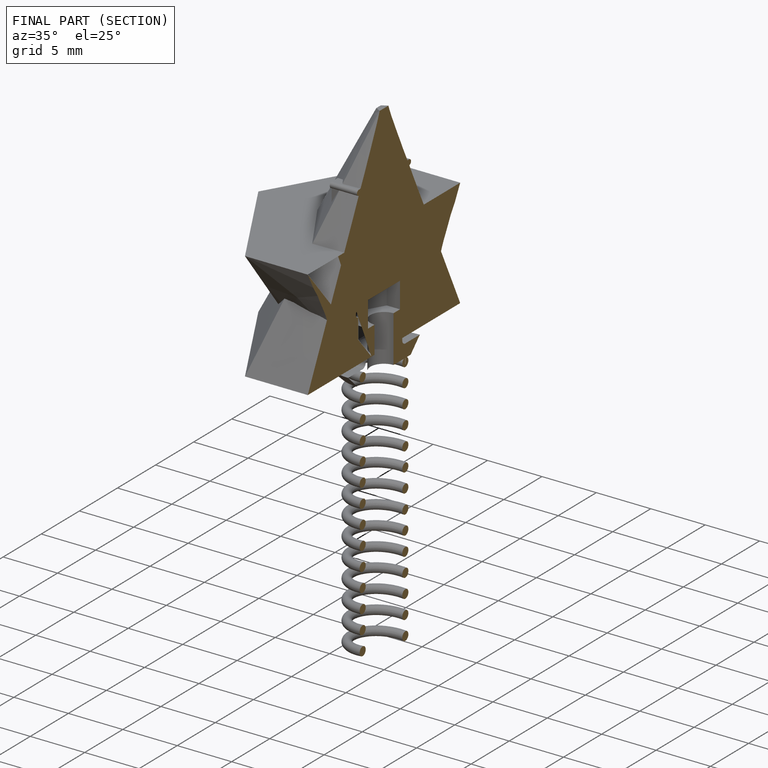
[diagram: finished part — half-section view (interior)]
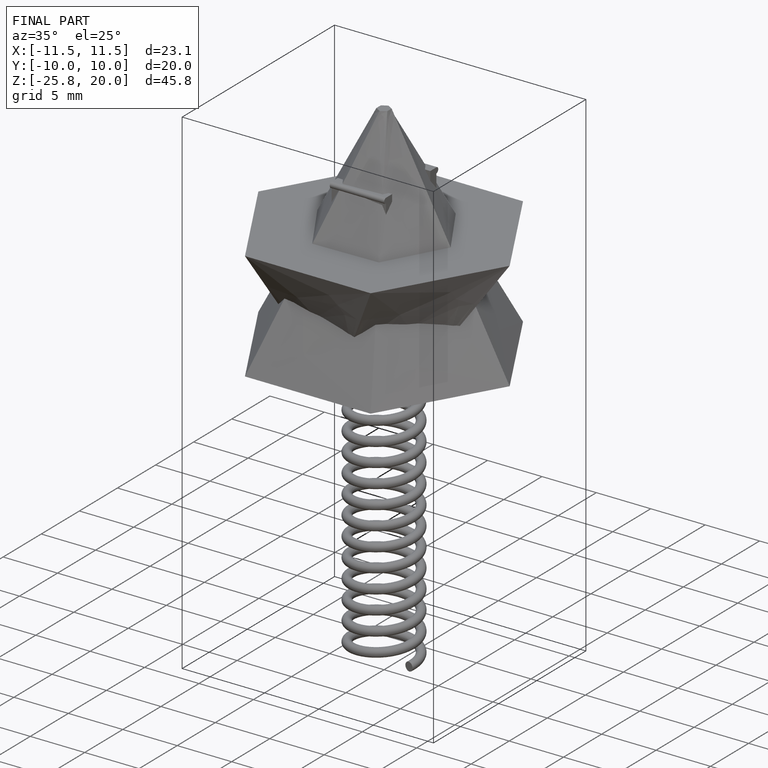
[diagram: finished part — iso view with bounding-box wireframe]
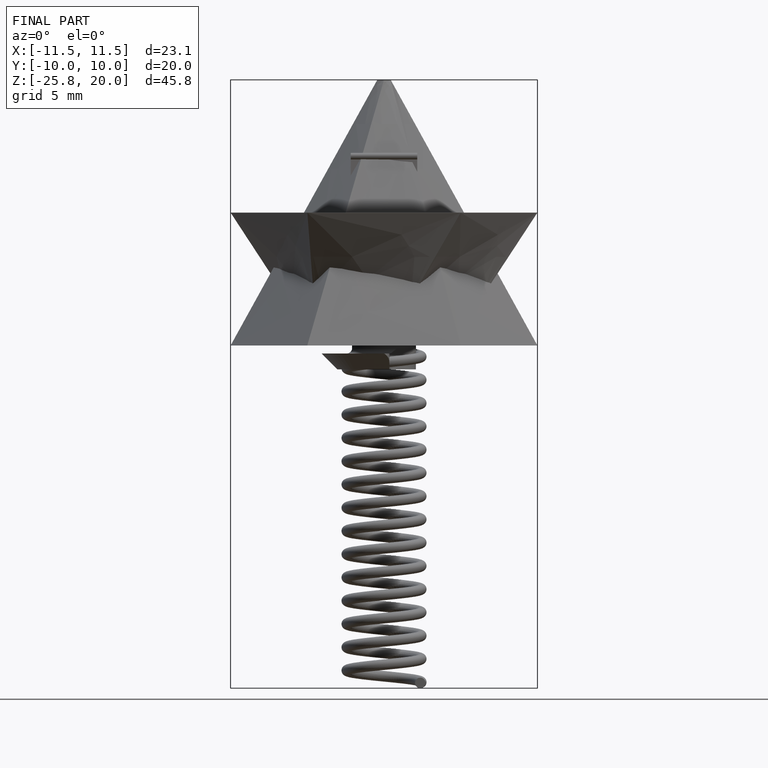
[diagram: finished part — front view with bounding-box wireframe]
